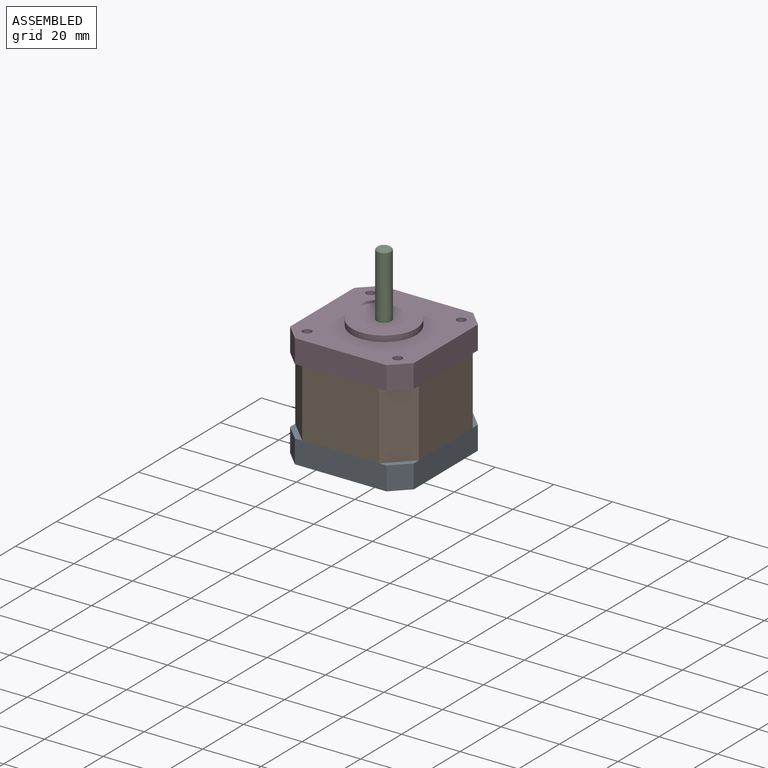
[diagram: assembled view]
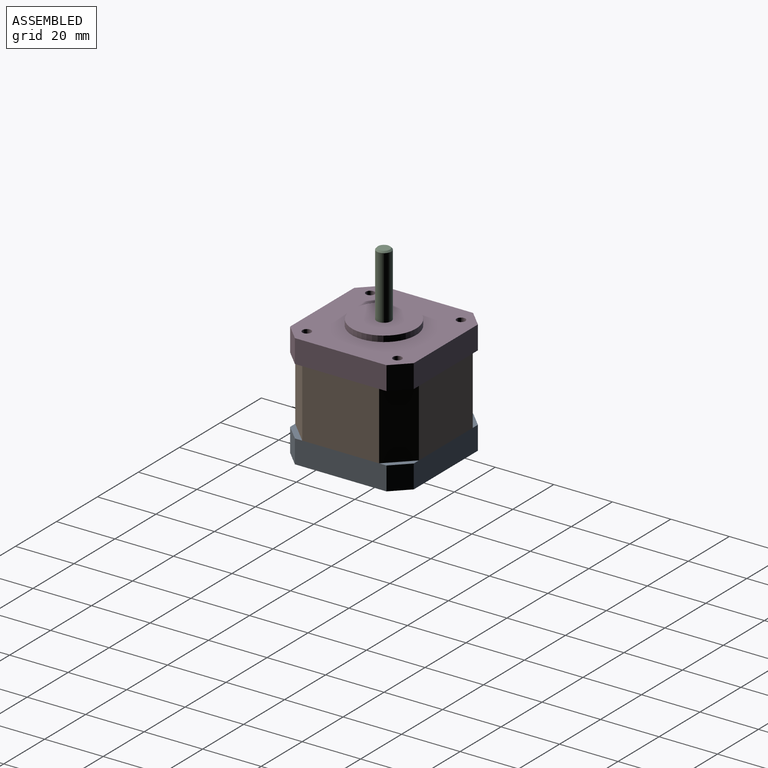
[diagram: assembled view, second angle]
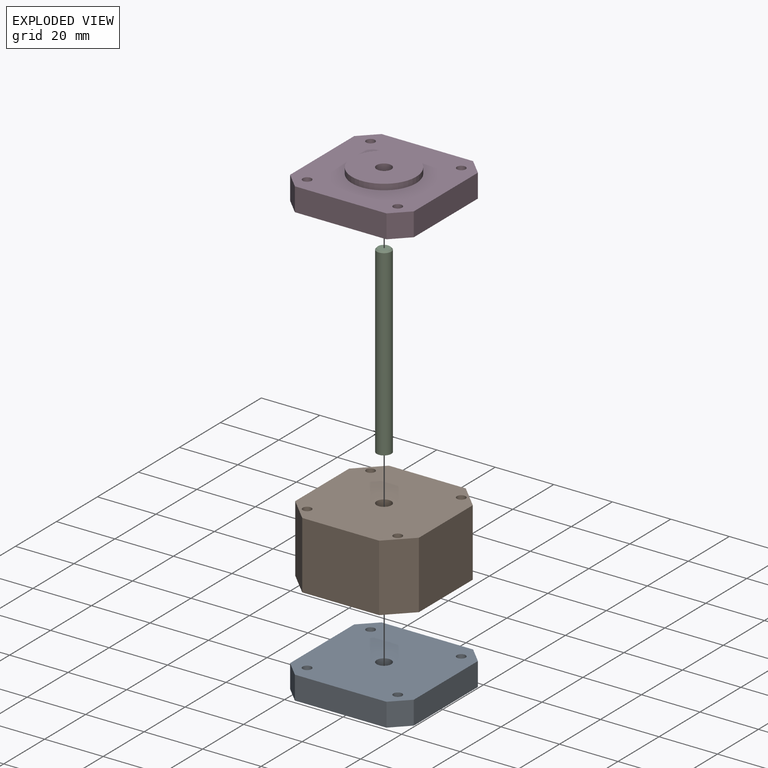
[diagram: exploded view]
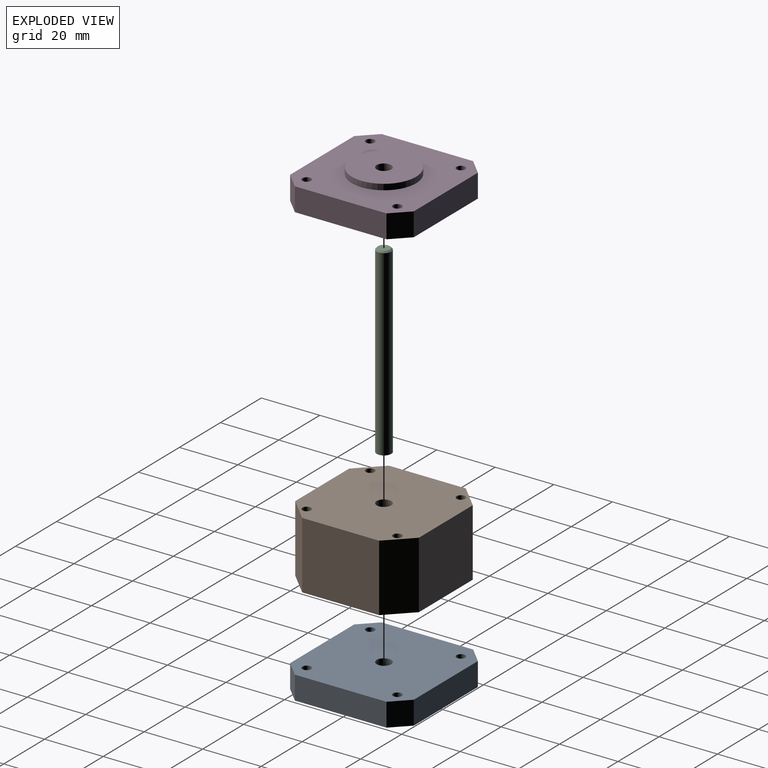
[diagram: exploded view, second angle]
ASSEMBLY  parts=4 mates=3
PART A: 15 faces, bbox 42.3x42.3x8 mm
  f0: plane 31.3x8mm, normal (1,0,0), area 250.4mm2, adj f8,f10,f11,f14
  f1: plane 31.3x8mm, normal (0,1,0), area 250.4mm2, adj f8,f10,f11,f12
  f2: plane 31.3x8mm, normal (-1,0,0), area 250.4mm2, adj f8,f10,f12,f13
  f3: plane 31.3x8mm, normal (0,-1,0), area 250.4mm2, adj f8,f10,f13,f14
  f4: cylinder r=1.5mm len=8mm, axis (0,0,1), area 75.4mm2, adj f8,f10
  f5: cylinder r=1.5mm len=8mm, axis (0,0,1), area 75.4mm2, adj f8,f10
  f6: cylinder r=1.5mm len=8mm, axis (0,0,1), area 75.4mm2, adj f8,f10
  f7: cylinder r=2.5mm len=8mm, axis (0,0,1), area 125.7mm2, adj f8,f10
  f8: plane 42.3x42.3mm, normal (0,0,-1), area 1680.9mm2, adj f0,f1,f2,f3,f4,f5,f6,f7
  f9: cylinder r=1.5mm len=8mm, axis (0,0,1), area 75.4mm2, adj f8,f10
  f10: plane 42.3x42.3mm, normal (0,0,1), area 1680.9mm2, adj f0,f1,f2,f3,f4,f5,f6,f7
  f11: plane 8x5.5mm, normal (0.71,0.71,0), area 62.2mm2, adj f0,f1,f8,f10
  f12: plane 8x5.5mm, normal (-0.71,0.71,0), area 62.2mm2, adj f1,f2,f8,f10
  f13: plane 8x5.5mm, normal (-0.71,-0.71,0), area 62.2mm2, adj f2,f3,f8,f10
  f14: plane 8x5.5mm, normal (0.71,-0.71,0), area 62.2mm2, adj f0,f3,f8,f10
PART B: 15 faces, bbox 42.3x42.3x23 mm
  f0: plane 26.3x23mm, normal (0,-1,0), area 604.9mm2, adj f9,f10,f11,f13
  f1: plane 26.3x23mm, normal (-1,0,0), area 604.9mm2, adj f9,f10,f11,f12
  f2: plane 26.3x23mm, normal (0,1,0), area 604.9mm2, adj f9,f10,f12,f14
  f3: plane 26.3x23mm, normal (1,0,0), area 604.9mm2, adj f9,f10,f13,f14
  f4: cylinder r=1.5mm len=23mm, axis (0,0,1), area 216.8mm2, adj f9,f10
  f5: cylinder r=1.5mm len=23mm, axis (0,0,1), area 216.8mm2, adj f9,f10
  f6: cylinder r=1.5mm len=23mm, axis (0,0,1), area 216.8mm2, adj f9,f10
  f7: cylinder r=2.5mm len=23mm, axis (0,0,1), area 361.3mm2, adj f9,f10
  f8: cylinder r=1.5mm len=23mm, axis (0,0,1), area 216.8mm2, adj f9,f10
  f9: plane 42.3x42.3mm, normal (0,0,1), area 1613.4mm2, adj f0,f1,f2,f3,f4,f5,f6,f7
  f10: plane 42.3x42.3mm, normal (0,0,-1), area 1613.4mm2, adj f0,f1,f2,f3,f4,f5,f6,f7
  f11: plane 23x8mm, normal (-0.71,-0.71,0), area 260.2mm2, adj f0,f1,f9,f10
  f12: plane 23x8mm, normal (-0.71,0.71,0), area 260.2mm2, adj f1,f2,f9,f10
  f13: plane 23x8mm, normal (0.71,-0.71,0), area 260.2mm2, adj f0,f3,f9,f10
  f14: plane 23x8mm, normal (0.71,0.71,0), area 260.2mm2, adj f2,f3,f9,f10
PART C: 4 faces, bbox 5x5x63 mm
  f0: cylinder r=2.5mm len=62.5mm, axis (0,0,-1), area 981.7mm2, adj f2,f3
  f1: plane 4x4mm, normal (0,0,1), area 12.6mm2, adj f3
  f2: plane 5x5mm, normal (0,0,-1), area 19.6mm2, adj f0
  f3: cone r=2mm half-angle=45deg, axis (0,0,-1), area 10mm2, adj f0,f1
PART D: 17 faces, bbox 42.3x42.3x10 mm
  f0: plane 31.3x8mm, normal (1,0,0), area 250.4mm2, adj f9,f12,f13,f16
  f1: plane 31.3x8mm, normal (0,1,0), area 250.4mm2, adj f9,f12,f13,f14
  f2: plane 31.3x8mm, normal (-1,0,0), area 250.4mm2, adj f9,f12,f14,f15
  f3: plane 31.3x8mm, normal (0,-1,0), area 250.4mm2, adj f9,f12,f15,f16
  f4: cylinder r=1.5mm len=8mm, axis (0,0,1), area 75.4mm2, adj f9,f12
  f5: cylinder r=1.5mm len=8mm, axis (0,0,1), area 75.4mm2, adj f9,f12
  f6: cylinder r=1.5mm len=8mm, axis (0,0,1), area 75.4mm2, adj f9,f12
  f7: cylinder r=2.5mm len=10mm, axis (0,0,1), area 157.1mm2, adj f11,f12
  f8: cylinder r=1.5mm len=8mm, axis (0,0,1), area 75.4mm2, adj f9,f12
  f9: plane 42.3x42.3mm, normal (0,0,1), area 1320.4mm2, adj f0,f1,f2,f3,f4,f5,f6,f8
  f10: cylinder r=11mm len=22mm, axis (0,0,-1), area 138.2mm2, adj f9,f11
  f11: plane 22x22mm, normal (0,0,1), area 360.5mm2, adj f7,f10
  f12: plane 42.3x42.3mm, normal (0,0,-1), area 1680.9mm2, adj f0,f1,f2,f3,f4,f5,f6,f7
  f13: plane 8x5.5mm, normal (0.71,0.71,0), area 62.2mm2, adj f0,f1,f9,f12
  f14: plane 8x5.5mm, normal (-0.71,0.71,0), area 62.2mm2, adj f1,f2,f9,f12
  f15: plane 8x5.5mm, normal (-0.71,-0.71,0), area 62.2mm2, adj f2,f3,f9,f12
  f16: plane 8x5.5mm, normal (0.71,-0.71,0), area 62.2mm2, adj f0,f3,f9,f12
PLACE A at identity fixed
PLACE B at identity
PLACE C rot(axis=(0,0,1),0deg) t=(0,0,-39)mm
PLACE D at identity
MATE fastened D.f7 <-> B.f7  axis (0,0,-1) through (0,0,-8)mm
MATE fastened A.f7 <-> B.f7  axis (0,0,1) through (0,0,-31)mm
MATE fastened C.f0 <-> A.f7  axis (0,0,-1) through (0,0,-39)mm
